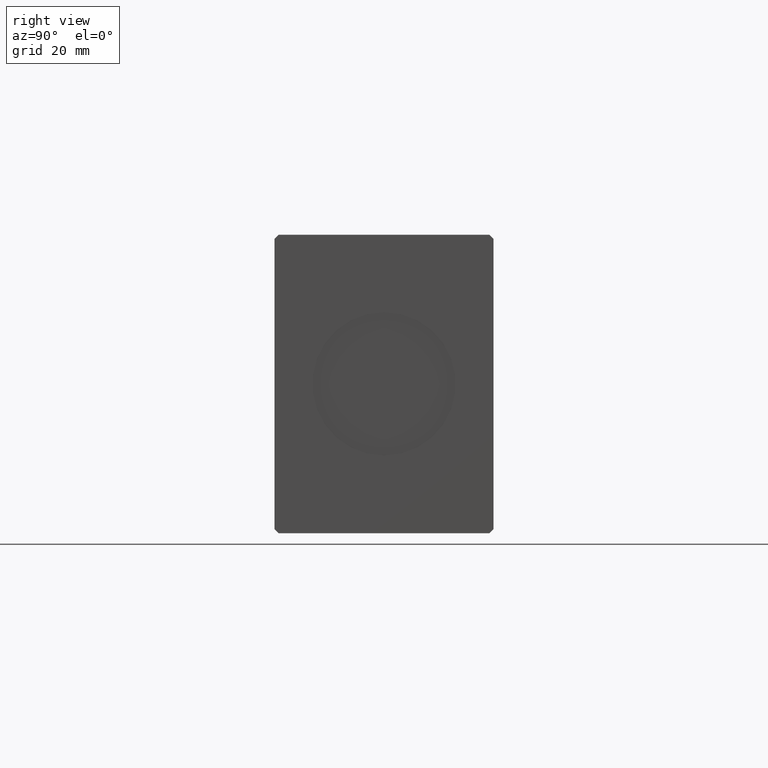
[diagram: clean part render]
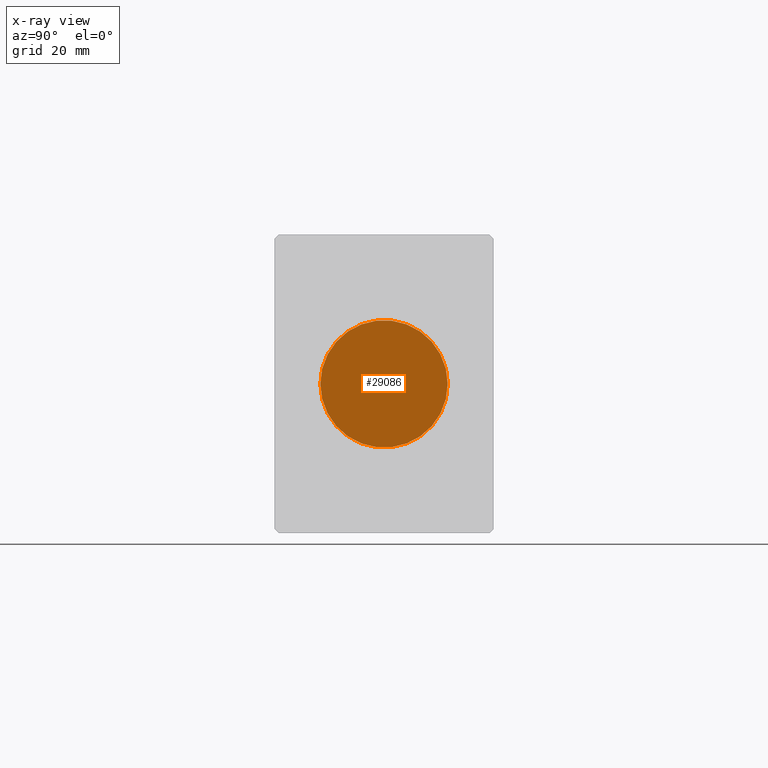
[diagram: x-ray — body ghosted, one internal face saturated and labeled with its STEP entity id]
A machine part, right view, then the same camera in x-ray: the body is ghosted and one INTERNAL B-rep face — a face not visible from any outside direction — is saturated and labeled: STEP entity #29086.
In plain terms, the highlighted planar face has unit normal (-1, -0, -0).
Its self-contained STEP definition (entity closure, byte-faithful):
#5657 = AXIS2_PLACEMENT_3D ( 'NONE', #36421, #39684, #8538 ) ;
#6633 = DIRECTION ( 'NONE',  ( 0.000000000000000000, -1.000000000000000000, -1.827169771437783368E-16 ) ) ;
#6934 = ORIENTED_EDGE ( 'NONE', *, *, #13477, .F. ) ;
#8538 = DIRECTION ( 'NONE',  ( 0.000000000000000000, -1.000000000000000000, -1.827169771437783368E-16 ) ) ;
#12840 = ORIENTED_EDGE ( 'NONE', *, *, #28856, .F. ) ;
#13477 = EDGE_CURVE ( 'NONE', #16398, #30846, #34704, .T. ) ;
#14612 = FACE_OUTER_BOUND ( 'NONE', #18893, .T. ) ;
#16398 = VERTEX_POINT ( 'NONE', #21347 ) ;
#18123 = CARTESIAN_POINT ( 'NONE',  ( 0.000000000000000000, -16.00000000000000000, -2.923471634300453389E-15 ) ) ;
#18893 = EDGE_LOOP ( 'NONE', ( #12840, #6934 ) ) ;
#21347 = CARTESIAN_POINT ( 'NONE',  ( 1.959434878635765131E-15, 16.00000000000000000, 2.923471634300453389E-15 ) ) ;
#21713 = CARTESIAN_POINT ( 'NONE',  ( 0.000000000000000000, 0.000000000000000000, 0.000000000000000000 ) ) ;
#22579 = AXIS2_PLACEMENT_3D ( 'NONE', #27015, #27221, #24361 ) ;
#24361 = DIRECTION ( 'NONE',  ( 0.000000000000000000, -1.000000000000000000, -1.827169771437783368E-16 ) ) ;
#25153 = CIRCLE ( 'NONE', #5657, 16.00000000000000000 ) ;
#27015 = CARTESIAN_POINT ( 'NONE',  ( 0.000000000000000000, 2.670839498924801092E-31, -1.461735817150226694E-15 ) ) ;
#27221 = DIRECTION ( 'NONE',  ( 0.000000000000000000, -1.827169771437783368E-16, 1.000000000000000000 ) ) ;
#28856 = EDGE_CURVE ( 'NONE', #30846, #16398, #25153, .T. ) ;
#29086 = ADVANCED_FACE ( 'NONE', ( #14612 ), #39434, .F. ) ;
#30846 = VERTEX_POINT ( 'NONE', #18123 ) ;
#34509 = DIRECTION ( 'NONE',  ( -0.000000000000000000, -1.827169771437783368E-16, 1.000000000000000000 ) ) ;
#34704 = CIRCLE ( 'NONE', #36646, 16.00000000000000000 ) ;
#36421 = CARTESIAN_POINT ( 'NONE',  ( 0.000000000000000000, 0.000000000000000000, 0.000000000000000000 ) ) ;
#36646 = AXIS2_PLACEMENT_3D ( 'NONE', #21713, #34509, #6633 ) ;
#39434 = PLANE ( 'NONE',  #22579 ) ;
#39684 = DIRECTION ( 'NONE',  ( -0.000000000000000000, -1.827169771437783368E-16, 1.000000000000000000 ) ) ;